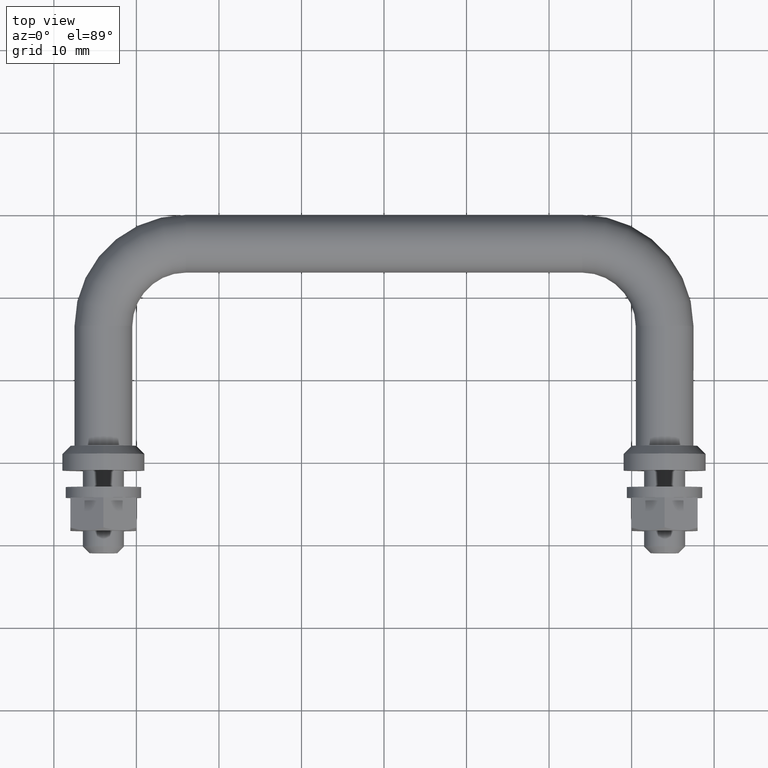
[diagram: clean part render]
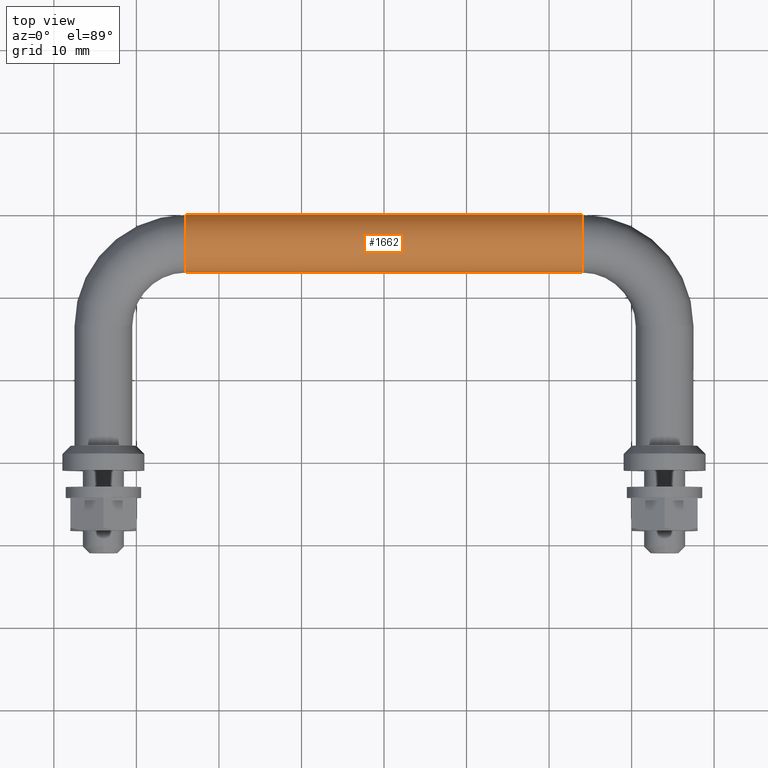
[diagram: same view with one face highlighted and labeled with its STEP entity id]
A machine part, top view. The second image highlights one B-rep face of the part: STEP entity #1662.
In plain terms, the highlighted cylindrical surface (edge-blend (fillet) strip) has radius 3.5 mm, axis along (1, 0, 0).
Its self-contained STEP definition (entity closure, byte-faithful):
#32 = DIRECTION ( 'NONE',  ( 0.0000000000000000000, 1.000000000000000000, 0.0000000000000000000 ) ) ;
#106 = CARTESIAN_POINT ( 'NONE',  ( 24.00000000000000700, 26.50000000000001100, 0.0000000000000000000 ) ) ;
#117 = EDGE_CURVE ( 'NONE', #397, #744, #414, .T. ) ;
#178 = DIRECTION ( 'NONE',  ( 1.000000000000000000, 1.445602896647339400E-016, 0.0000000000000000000 ) ) ;
#207 = DIRECTION ( 'NONE',  ( 1.000000000000000000, 1.445602896647339400E-016, 0.0000000000000000000 ) ) ;
#217 = CYLINDRICAL_SURFACE ( 'NONE', #376, 3.499999999999999600 ) ;
#253 = DIRECTION ( 'NONE',  ( 0.0000000000000000000, 0.0000000000000000000, 1.000000000000000000 ) ) ;
#293 = AXIS2_PLACEMENT_3D ( 'NONE', #106, #1089, #253 ) ;
#296 = LINE ( 'NONE', #1044, #1035 ) ;
#345 = CIRCLE ( 'NONE', #293, 3.500000000000000000 ) ;
#376 = AXIS2_PLACEMENT_3D ( 'NONE', #1017, #178, #32 ) ;
#397 = VERTEX_POINT ( 'NONE', #1059 ) ;
#414 = LINE ( 'NONE', #759, #1107 ) ;
#424 = CARTESIAN_POINT ( 'NONE',  ( -23.99999999999998600, 26.50000000000000400, 0.0000000000000000000 ) ) ;
#562 = DIRECTION ( 'NONE',  ( 0.0000000000000000000, 0.0000000000000000000, 1.000000000000000000 ) ) ;
#585 = EDGE_CURVE ( 'NONE', #397, #1636, #1154, .T. ) ;
#638 = CARTESIAN_POINT ( 'NONE',  ( 24.00000000000000700, 30.00000000000001100, 0.0000000000000000000 ) ) ;
#697 = EDGE_LOOP ( 'NONE', ( #1376, #1388, #993, #1171 ) ) ;
#744 = VERTEX_POINT ( 'NONE', #638 ) ;
#759 = CARTESIAN_POINT ( 'NONE',  ( -23.99999999999998600, 30.00000000000000400, 0.0000000000000000000 ) ) ;
#773 = AXIS2_PLACEMENT_3D ( 'NONE', #424, #1392, #562 ) ;
#836 = EDGE_CURVE ( 'NONE', #1636, #1256, #296, .T. ) ;
#993 = ORIENTED_EDGE ( 'NONE', *, *, #1175, .F. ) ;
#1017 = CARTESIAN_POINT ( 'NONE',  ( -23.99999999999998600, 26.50000000000000400, 0.0000000000000000000 ) ) ;
#1035 = VECTOR ( 'NONE', #207, 1000.000000000000000 ) ;
#1044 = CARTESIAN_POINT ( 'NONE',  ( -23.99999999999998600, 23.00000000000000400, 4.286263797015736600E-016 ) ) ;
#1051 = CARTESIAN_POINT ( 'NONE',  ( 24.00000000000000700, 23.00000000000001100, 4.286263797015737100E-016 ) ) ;
#1059 = CARTESIAN_POINT ( 'NONE',  ( -23.99999999999998600, 30.00000000000000400, 0.0000000000000000000 ) ) ;
#1089 = DIRECTION ( 'NONE',  ( 1.000000000000000000, 6.123233995736766000E-017, 0.0000000000000000000 ) ) ;
#1107 = VECTOR ( 'NONE', #1571, 1000.000000000000000 ) ;
#1154 = CIRCLE ( 'NONE', #773, 3.500000000000000000 ) ;
#1171 = ORIENTED_EDGE ( 'NONE', *, *, #117, .F. ) ;
#1175 = EDGE_CURVE ( 'NONE', #744, #1256, #345, .T. ) ;
#1256 = VERTEX_POINT ( 'NONE', #1051 ) ;
#1376 = ORIENTED_EDGE ( 'NONE', *, *, #585, .T. ) ;
#1388 = ORIENTED_EDGE ( 'NONE', *, *, #836, .T. ) ;
#1392 = DIRECTION ( 'NONE',  ( 1.000000000000000000, 6.123233995736766000E-017, 0.0000000000000000000 ) ) ;
#1548 = CARTESIAN_POINT ( 'NONE',  ( -23.99999999999998600, 23.00000000000000400, 4.286263797015741000E-016 ) ) ;
#1571 = DIRECTION ( 'NONE',  ( 1.000000000000000000, 1.445602896647339400E-016, 0.0000000000000000000 ) ) ;
#1636 = VERTEX_POINT ( 'NONE', #1548 ) ;
#1662 = ADVANCED_FACE ( 'NONE', ( #1674 ), #217, .T. ) ;
#1674 = FACE_OUTER_BOUND ( 'NONE', #697, .T. ) ;